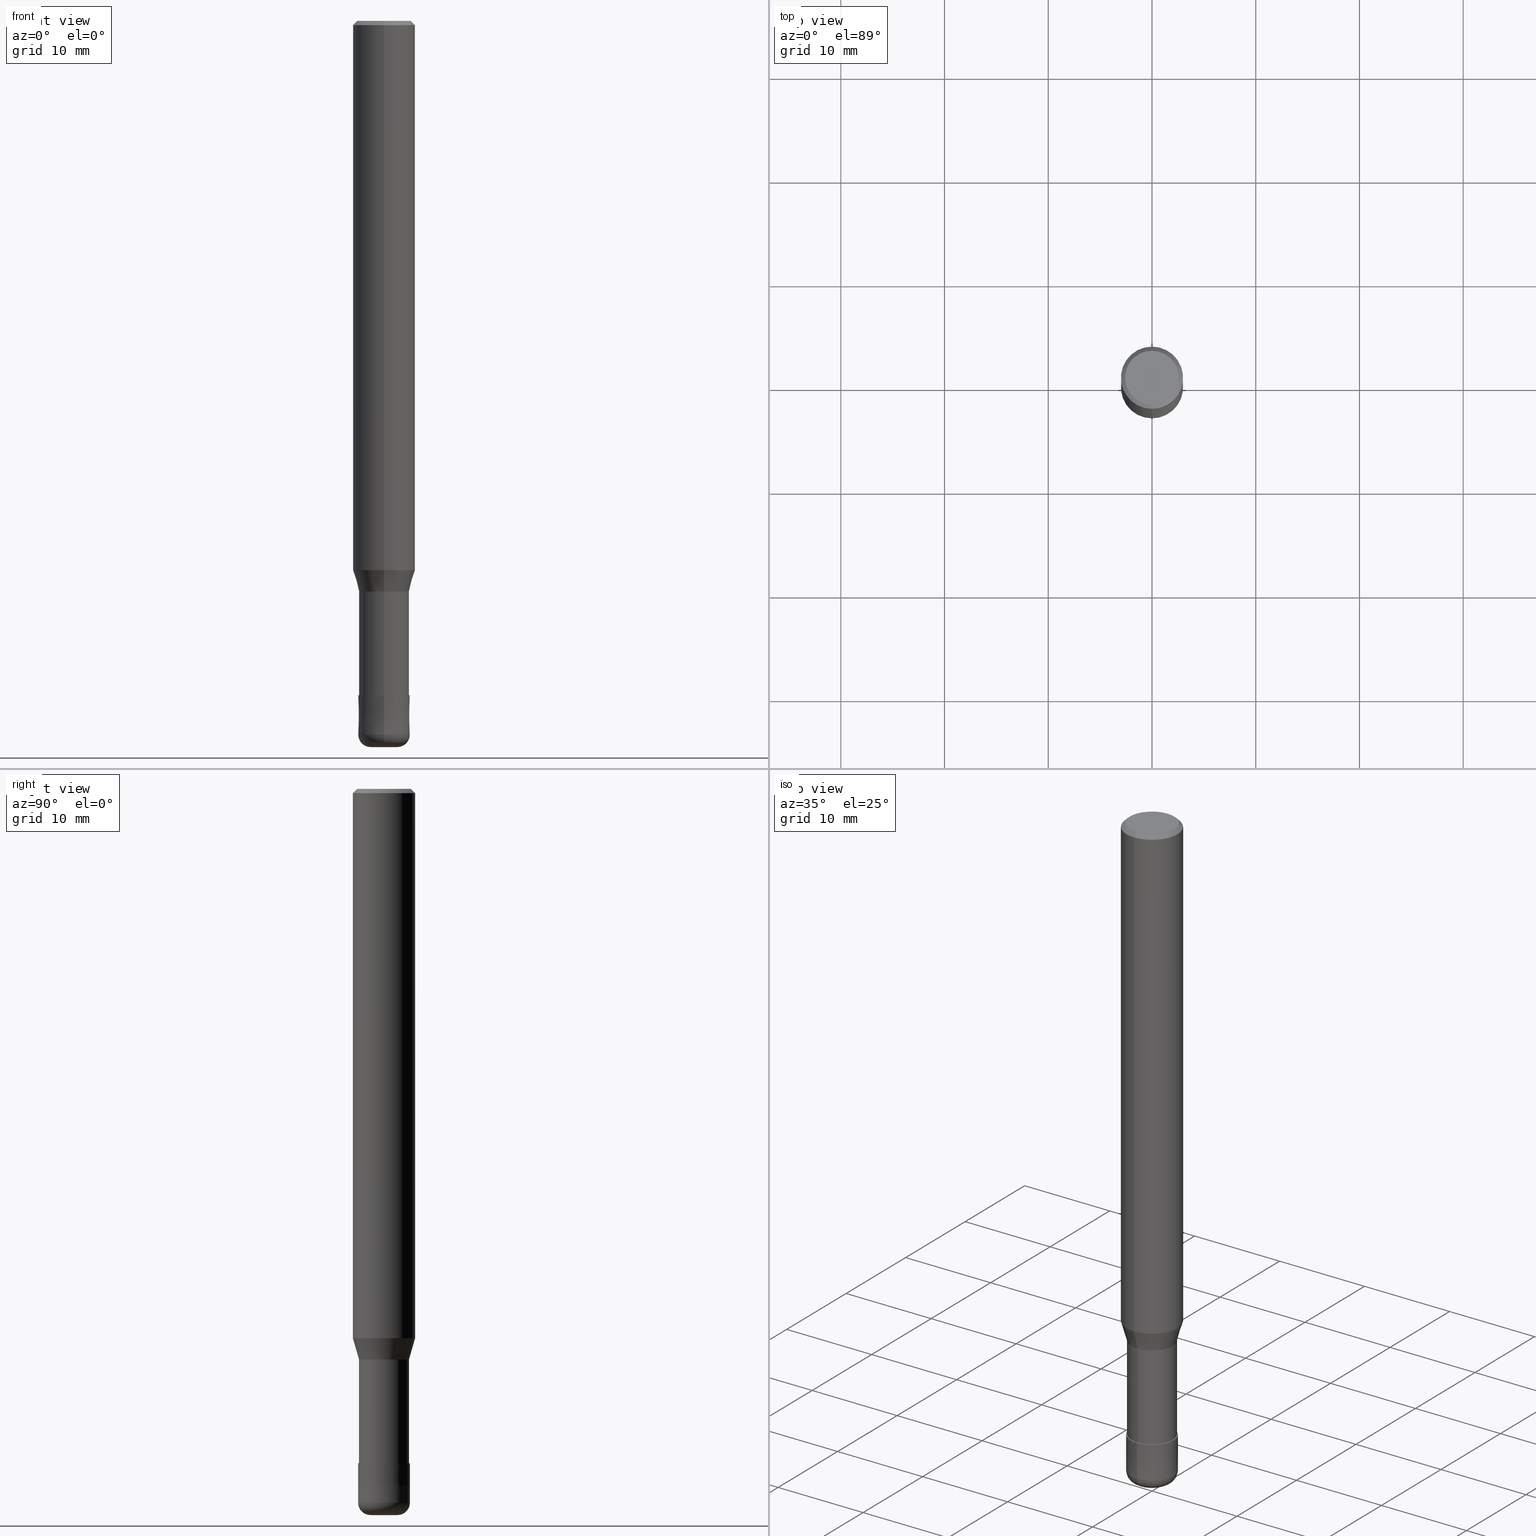
[diagram: canonical four-view strip — front | top / right | iso, engineering-drawing reading convention]
A machine part, canonical four-view strip (front | top / right | iso — engineering-drawing reading convention). The complete STEP part file that produces these views, byte-faithful:
ISO-10303-21;
HEADER;
FILE_DESCRIPTION(('no description'),'unknown implementation level');
FILE_NAME('CRRS4050-12-15-Huellk.stp','  ',('CIMSOURCE GmbH'),('CADClick - KiM GmbH - www.kimweb.de'),'unknown preprocess','ACIS','unknown authorization');
FILE_SCHEMA(('automotive_design'));
ENDSEC;
DATA;
#1=MECHANICAL_DESIGN_GEOMETRIC_PRESENTATION_REPRESENTATION(' ',(#14,#15,#16,#17,#18,#19,#20,#21,#22,#23,#24,#25,#26,#27,#28,#29,#30,#31,#32,#33,#34,#35,#36,#37,#38,#39,#40,#41,#42,#43,#44,#45,#46,#47,#48,#49,#50,#51,#52,#53,#54,#55,#56,#57,#58,#59,#60,#61,#62,#63,#64,#65,#66,#67,#68,#69,#70,#71,#72,#73,#74,#75,#76,#77,#78,#79,#80),#10);
#2=PRODUCT_DEFINITION_CONTEXT('',#81,'design');
#3=APPLICATION_PROTOCOL_DEFINITION('INTERNATIONAL STANDARD','automotive_design',1994,#81);
#4=PRODUCT_CATEGORY_RELATIONSHIP('NONE','NONE',#82,#83);
#5=SHAPE_DEFINITION_REPRESENTATION(#84,#85);
#6=PRODUCT_DEFINITION_CONTEXT('',#86,'design');
#7=APPLICATION_PROTOCOL_DEFINITION('INTERNATIONAL STANDARD','automotive_design',1994,#86);
#8=PRODUCT_CATEGORY_RELATIONSHIP('NONE','NONE',#87,#88);
#9=SHAPE_DEFINITION_REPRESENTATION(#89,#90);
#10= (GEOMETRIC_REPRESENTATION_CONTEXT(3)GLOBAL_UNCERTAINTY_ASSIGNED_CONTEXT((#93))GLOBAL_UNIT_ASSIGNED_CONTEXT((#95,#96,#97))REPRESENTATION_CONTEXT('NONE','WORKSPACE'));
#14=STYLED_ITEM('',(#99),#100);
#15=STYLED_ITEM('',(#101),#102);
#16=STYLED_ITEM('',(#103),#104);
#17=STYLED_ITEM('',(#105),#106);
#18=STYLED_ITEM('',(#107),#108);
#19=STYLED_ITEM('',(#109),#110);
#20=STYLED_ITEM('',(#111),#112);
#21=STYLED_ITEM('',(#113),#114);
#22=STYLED_ITEM('',(#115),#116);
#23=STYLED_ITEM('',(#117),#118);
#24=STYLED_ITEM('',(#119),#120);
#25=STYLED_ITEM('',(#121),#122);
#26=STYLED_ITEM('',(#123),#124);
#27=STYLED_ITEM('',(#125),#126);
#28=STYLED_ITEM('',(#127),#128);
#29=STYLED_ITEM('',(#129),#130);
#30=STYLED_ITEM('',(#131),#132);
#31=STYLED_ITEM('',(#133),#134);
#32=STYLED_ITEM('',(#135),#136);
#33=STYLED_ITEM('',(#137),#138);
#34=STYLED_ITEM('',(#139),#140);
#35=STYLED_ITEM('',(#141),#142);
#36=STYLED_ITEM('',(#143),#144);
#37=STYLED_ITEM('',(#145),#146);
#38=STYLED_ITEM('',(#147),#148);
#39=STYLED_ITEM('',(#149),#150);
#40=STYLED_ITEM('',(#151),#152);
#41=STYLED_ITEM('',(#153),#154);
#42=STYLED_ITEM('',(#155),#156);
#43=STYLED_ITEM('',(#157),#158);
#44=STYLED_ITEM('',(#159),#160);
#45=STYLED_ITEM('',(#161),#162);
#46=STYLED_ITEM('',(#163),#164);
#47=STYLED_ITEM('',(#165),#166);
#48=STYLED_ITEM('',(#167),#168);
#49=STYLED_ITEM('',(#169),#170);
#50=STYLED_ITEM('',(#171),#172);
#51=STYLED_ITEM('',(#173),#174);
#52=STYLED_ITEM('',(#175),#176);
#53=STYLED_ITEM('',(#177),#178);
#54=STYLED_ITEM('',(#179),#180);
#55=STYLED_ITEM('',(#181),#182);
#56=STYLED_ITEM('',(#183),#184);
#57=STYLED_ITEM('',(#185),#186);
#58=STYLED_ITEM('',(#187),#188);
#59=STYLED_ITEM('',(#189),#190);
#60=STYLED_ITEM('',(#191),#192);
#61=STYLED_ITEM('',(#193),#194);
#62=STYLED_ITEM('',(#195),#196);
#63=STYLED_ITEM('',(#197),#198);
#64=STYLED_ITEM('',(#199),#200);
#65=STYLED_ITEM('',(#201),#202);
#66=STYLED_ITEM('',(#203),#204);
#67=STYLED_ITEM('',(#205),#206);
#68=STYLED_ITEM('',(#207),#208);
#69=STYLED_ITEM('',(#209),#210);
#70=STYLED_ITEM('',(#211),#212);
#71=STYLED_ITEM('',(#213),#214);
#72=STYLED_ITEM('',(#215),#216);
#73=STYLED_ITEM('',(#217),#218);
#74=STYLED_ITEM('',(#219),#220);
#75=STYLED_ITEM('',(#221),#222);
#76=STYLED_ITEM('',(#223),#224);
#77=STYLED_ITEM('',(#225),#226);
#78=STYLED_ITEM('',(#227),#228);
#79=STYLED_ITEM('',(#229),#230);
#80=STYLED_ITEM('',(#231),#232);
#81=APPLICATION_CONTEXT(' ');
#82=PRODUCT_CATEGORY('part','NONE');
#83=PRODUCT_RELATED_PRODUCT_CATEGORY('detail',' ',(#233));
#84=PRODUCT_DEFINITION_SHAPE('NONE','NONE',#234);
#85=ADVANCED_BREP_SHAPE_REPRESENTATION('1',(#228,#235),#10);
#86=APPLICATION_CONTEXT(' ');
#87=PRODUCT_CATEGORY('part','NONE');
#88=PRODUCT_RELATED_PRODUCT_CATEGORY('detail',' ',(#236));
#89=PRODUCT_DEFINITION_SHAPE('NONE','NONE',#237);
#90=ADVANCED_BREP_SHAPE_REPRESENTATION('2',(#176,#238),#10);
#93=UNCERTAINTY_MEASURE_WITH_UNIT(LENGTH_MEASURE(1.0E-006),#95,'','');
#95= (CONVERSION_BASED_UNIT('MILLIMETRE',#241)LENGTH_UNIT()NAMED_UNIT(#244));
#96= (NAMED_UNIT(#246)PLANE_ANGLE_UNIT()SI_UNIT($,.RADIAN.));
#97= (NAMED_UNIT(#246)SOLID_ANGLE_UNIT()SI_UNIT($,.STERADIAN.));
#99=PRESENTATION_STYLE_ASSIGNMENT((#252));
#100=ADVANCED_FACE('',(#253),#254,.T.);
#101=PRESENTATION_STYLE_ASSIGNMENT((#255));
#102=VERTEX_POINT('',#256);
#103=PRESENTATION_STYLE_ASSIGNMENT((#257));
#104=EDGE_CURVE('',#120,#126,#258,.T.);
#105=PRESENTATION_STYLE_ASSIGNMENT((#259));
#106=ADVANCED_FACE('',(#260),#261,.T.);
#107=PRESENTATION_STYLE_ASSIGNMENT((#262));
#108=EDGE_CURVE('',#140,#214,#263,.T.);
#109=PRESENTATION_STYLE_ASSIGNMENT((#264));
#110=EDGE_CURVE('',#140,#226,#265,.T.);
#111=PRESENTATION_STYLE_ASSIGNMENT((#266));
#112=ADVANCED_FACE('',(#267),#268,.T.);
#113=PRESENTATION_STYLE_ASSIGNMENT((#269));
#114=EDGE_CURVE('',#196,#226,#270,.T.);
#115=PRESENTATION_STYLE_ASSIGNMENT((#271));
#116=ADVANCED_FACE('',(#272),#273,.T.);
#117=PRESENTATION_STYLE_ASSIGNMENT((#274));
#118=EDGE_CURVE('',#126,#140,#275,.T.);
#119=PRESENTATION_STYLE_ASSIGNMENT((#276));
#120=VERTEX_POINT('',#277);
#121=PRESENTATION_STYLE_ASSIGNMENT((#278));
#122=VERTEX_POINT('',#279);
#123=PRESENTATION_STYLE_ASSIGNMENT((#280));
#124=ADVANCED_FACE('',(#281,#282),#283,.T.);
#125=PRESENTATION_STYLE_ASSIGNMENT((#284));
#126=VERTEX_POINT('',#285);
#127=PRESENTATION_STYLE_ASSIGNMENT((#286));
#128=ADVANCED_FACE('',(#287),#288,.T.);
#129=PRESENTATION_STYLE_ASSIGNMENT((#289));
#130=EDGE_CURVE('',#136,#204,#290,.T.);
#131=PRESENTATION_STYLE_ASSIGNMENT((#291));
#132=EDGE_CURVE('',#122,#150,#292,.T.);
#133=PRESENTATION_STYLE_ASSIGNMENT((#293));
#134=ADVANCED_FACE('',(#294),#295,.T.);
#135=PRESENTATION_STYLE_ASSIGNMENT((#296));
#136=VERTEX_POINT('',#297);
#137=PRESENTATION_STYLE_ASSIGNMENT((#298));
#138=ADVANCED_FACE('',(#299),#300,.T.);
#139=PRESENTATION_STYLE_ASSIGNMENT((#301));
#140=VERTEX_POINT('',#302);
#141=PRESENTATION_STYLE_ASSIGNMENT((#303));
#142=VERTEX_POINT('',#304);
#143=PRESENTATION_STYLE_ASSIGNMENT((#305));
#144=EDGE_CURVE('',#102,#142,#306,.T.);
#145=PRESENTATION_STYLE_ASSIGNMENT((#307));
#146=VERTEX_POINT('',#308);
#147=PRESENTATION_STYLE_ASSIGNMENT((#309));
#148=VERTEX_POINT('',#310);
#149=PRESENTATION_STYLE_ASSIGNMENT((#311));
#150=VERTEX_POINT('',#312);
#151=PRESENTATION_STYLE_ASSIGNMENT((#313));
#152=VERTEX_POINT('',#314);
#153=PRESENTATION_STYLE_ASSIGNMENT((#315));
#154=ADVANCED_FACE('',(#316),#317,.T.);
#155=PRESENTATION_STYLE_ASSIGNMENT((#318));
#156=EDGE_CURVE('',#222,#122,#319,.T.);
#157=PRESENTATION_STYLE_ASSIGNMENT((#320));
#158=EDGE_CURVE('',#146,#148,#321,.T.);
#159=PRESENTATION_STYLE_ASSIGNMENT((#322));
#160=EDGE_CURVE('',#200,#222,#323,.T.);
#161=PRESENTATION_STYLE_ASSIGNMENT((#324));
#162=VERTEX_POINT('',#325);
#163=PRESENTATION_STYLE_ASSIGNMENT((#326));
#164=EDGE_CURVE('',#142,#102,#327,.T.);
#165=PRESENTATION_STYLE_ASSIGNMENT((#328));
#166=EDGE_CURVE('',#122,#222,#329,.T.);
#167=PRESENTATION_STYLE_ASSIGNMENT((#330));
#168=EDGE_CURVE('',#150,#200,#331,.T.);
#169=PRESENTATION_STYLE_ASSIGNMENT((#332));
#170=ADVANCED_FACE('',(#333),#334,.T.);
#171=PRESENTATION_STYLE_ASSIGNMENT((#335));
#172=ADVANCED_FACE('',(#336),#337,.T.);
#173=PRESENTATION_STYLE_ASSIGNMENT((#338));
#174=EDGE_CURVE('',#200,#150,#339,.T.);
#175=PRESENTATION_STYLE_ASSIGNMENT((#340));
#176=MANIFOLD_SOLID_BREP('2',#341);
#177=PRESENTATION_STYLE_ASSIGNMENT((#342));
#178=EDGE_CURVE('',#148,#162,#343,.T.);
#179=PRESENTATION_STYLE_ASSIGNMENT((#344));
#180=EDGE_CURVE('',#150,#142,#345,.T.);
#181=PRESENTATION_STYLE_ASSIGNMENT((#346));
#182=EDGE_CURVE('',#146,#152,#347,.T.);
#183=PRESENTATION_STYLE_ASSIGNMENT((#348));
#184=EDGE_CURVE('',#204,#152,#349,.T.);
#185=PRESENTATION_STYLE_ASSIGNMENT((#350));
#186=EDGE_CURVE('',#204,#136,#351,.T.);
#187=PRESENTATION_STYLE_ASSIGNMENT((#352));
#188=EDGE_CURVE('',#152,#146,#353,.T.);
#189=PRESENTATION_STYLE_ASSIGNMENT((#354));
#190=ADVANCED_FACE('',(#355),#356,.T.);
#191=PRESENTATION_STYLE_ASSIGNMENT((#357));
#192=ADVANCED_FACE('',(#358),#359,.T.);
#193=PRESENTATION_STYLE_ASSIGNMENT((#360));
#194=EDGE_CURVE('',#162,#152,#361,.T.);
#195=PRESENTATION_STYLE_ASSIGNMENT((#362));
#196=VERTEX_POINT('',#363);
#197=PRESENTATION_STYLE_ASSIGNMENT((#364));
#198=EDGE_CURVE('',#214,#196,#365,.T.);
#199=PRESENTATION_STYLE_ASSIGNMENT((#366));
#200=VERTEX_POINT('',#367);
#201=PRESENTATION_STYLE_ASSIGNMENT((#368));
#202=EDGE_CURVE('',#226,#140,#369,.T.);
#203=PRESENTATION_STYLE_ASSIGNMENT((#370));
#204=VERTEX_POINT('',#371);
#205=PRESENTATION_STYLE_ASSIGNMENT((#372));
#206=EDGE_CURVE('',#162,#148,#373,.T.);
#207=PRESENTATION_STYLE_ASSIGNMENT((#374));
#208=EDGE_CURVE('',#126,#120,#375,.T.);
#209=PRESENTATION_STYLE_ASSIGNMENT((#376));
#210=EDGE_CURVE('',#226,#120,#377,.T.);
#211=PRESENTATION_STYLE_ASSIGNMENT((#378));
#212=EDGE_CURVE('',#196,#214,#379,.T.);
#213=PRESENTATION_STYLE_ASSIGNMENT((#380));
#214=VERTEX_POINT('',#381);
#215=PRESENTATION_STYLE_ASSIGNMENT((#382));
#216=ADVANCED_FACE('',(#383),#384,.T.);
#217=PRESENTATION_STYLE_ASSIGNMENT((#385));
#218=EDGE_CURVE('',#146,#136,#386,.T.);
#219=PRESENTATION_STYLE_ASSIGNMENT((#387));
#220=ADVANCED_FACE('',(#388),#389,.T.);
#221=PRESENTATION_STYLE_ASSIGNMENT((#390));
#222=VERTEX_POINT('',#391);
#223=PRESENTATION_STYLE_ASSIGNMENT((#392));
#224=EDGE_CURVE('',#102,#200,#393,.T.);
#225=PRESENTATION_STYLE_ASSIGNMENT((#394));
#226=VERTEX_POINT('',#395);
#227=PRESENTATION_STYLE_ASSIGNMENT((#396));
#228=MANIFOLD_SOLID_BREP('1',#397);
#229=PRESENTATION_STYLE_ASSIGNMENT((#398));
#230=ADVANCED_FACE('',(#399),#400,.T.);
#231=PRESENTATION_STYLE_ASSIGNMENT((#401));
#232=ADVANCED_FACE('',(#402),#403,.T.);
#233=PRODUCT('1','1','PART-1-DESC',(#404));
#234=PRODUCT_DEFINITION('NONE','NONE',#405,#2);
#235=AXIS2_PLACEMENT_3D('',#406,#407,#408);
#236=PRODUCT('2','2','PART-2-DESC',(#409));
#237=PRODUCT_DEFINITION('NONE','NONE',#410,#6);
#238=AXIS2_PLACEMENT_3D('',#411,#412,#413);
#241=LENGTH_MEASURE_WITH_UNIT(LENGTH_MEASURE(1.0),#414);
#244=DIMENSIONAL_EXPONENTS(1.0,0.0,0.0,0.0,0.0,0.0,0.0);
#246=DIMENSIONAL_EXPONENTS(0.0,0.0,0.0,0.0,0.0,0.0,0.0);
#252=SURFACE_STYLE_USAGE(.BOTH.,#415);
#253=FACE_OUTER_BOUND('',#416,.T.);
#254=PLANE('',#417);
#255=POINT_STYLE(' ',#418,POSITIVE_LENGTH_MEASURE(1.0E-006),#419);
#256=CARTESIAN_POINT('',(0.0,2.6,0.0));
#257=CURVE_STYLE('',#420,POSITIVE_LENGTH_MEASURE(1.0E-006),#421);
#258=CIRCLE('',#422,2.99995);
#259=SURFACE_STYLE_USAGE(.BOTH.,#423);
#260=FACE_OUTER_BOUND('',#424,.T.);
#261=PLANE('',#425);
#262=CURVE_STYLE('',#426,POSITIVE_LENGTH_MEASURE(1.0E-006),#427);
#263=LINE('',#428,#429);
#264=CURVE_STYLE('',#430,POSITIVE_LENGTH_MEASURE(1.0E-006),#431);
#265=CIRCLE('',#432,2.40995);
#266=SURFACE_STYLE_USAGE(.BOTH.,#433);
#267=FACE_OUTER_BOUND('',#434,.T.);
#268=CONICAL_SURFACE('',#435,2.8,0.78539816339745);
#269=CURVE_STYLE('',#436,POSITIVE_LENGTH_MEASURE(1.0E-006),#437);
#270=LINE('',#438,#439);
#271=SURFACE_STYLE_USAGE(.BOTH.,#440);
#272=FACE_OUTER_BOUND('',#441,.T.);
#273=CONICAL_SURFACE('',#442,2.70495,0.279197900775595);
#274=CURVE_STYLE('',#443,POSITIVE_LENGTH_MEASURE(1.0E-006),#444);
#275=LINE('',#445,#446);
#276=POINT_STYLE(' ',#447,POSITIVE_LENGTH_MEASURE(1.0E-006),#448);
#277=CARTESIAN_POINT('',(3.67375783114944E-016,-2.99995,-52.942));
#278=POINT_STYLE(' ',#449,POSITIVE_LENGTH_MEASURE(1.0E-006),#450);
#279=CARTESIAN_POINT('',(3.67381906146713E-016,-3.0,-52.942));
#280=SURFACE_STYLE_USAGE(.BOTH.,#451);
#281=FACE_OUTER_BOUND('',#452,.T.);
#282=FACE_BOUND('',#453,.T.);
#283=PLANE('',#454);
#284=POINT_STYLE(' ',#455,POSITIVE_LENGTH_MEASURE(1.0E-006),#456);
#285=CARTESIAN_POINT('',(0.0,2.99995,-52.942));
#286=SURFACE_STYLE_USAGE(.BOTH.,#457);
#287=FACE_OUTER_BOUND('',#458,.T.);
#288=TOROIDAL_SURFACE('',#459,1.3,1.2);
#289=CURVE_STYLE('',#460,POSITIVE_LENGTH_MEASURE(1.0E-006),#461);
#290=CIRCLE('',#462,1.3);
#291=CURVE_STYLE('',#463,POSITIVE_LENGTH_MEASURE(1.0E-006),#464);
#292=LINE('',#465,#466);
#293=SURFACE_STYLE_USAGE(.BOTH.,#467);
#294=FACE_OUTER_BOUND('',#468,.T.);
#295=PLANE('',#469);
#296=POINT_STYLE(' ',#470,POSITIVE_LENGTH_MEASURE(1.0E-006),#471);
#297=CARTESIAN_POINT('',(1.59198825996909E-016,-1.3,-70.0));
#298=SURFACE_STYLE_USAGE(.BOTH.,#472);
#299=FACE_OUTER_BOUND('',#473,.T.);
#300=CYLINDRICAL_SURFACE('',#474,2.40995);
#301=POINT_STYLE(' ',#475,POSITIVE_LENGTH_MEASURE(1.0E-006),#476);
#302=CARTESIAN_POINT('',(0.0,2.40995,-55.0));
#303=POINT_STYLE(' ',#477,POSITIVE_LENGTH_MEASURE(1.0E-006),#478);
#304=CARTESIAN_POINT('',(3.18397651993818E-016,-2.6,0.0));
#305=CURVE_STYLE('',#479,POSITIVE_LENGTH_MEASURE(1.0E-006),#480);
#306=CIRCLE('',#481,2.6);
#307=POINT_STYLE(' ',#482,POSITIVE_LENGTH_MEASURE(1.0E-006),#483);
#308=CARTESIAN_POINT('',(3.06151588455594E-016,-2.5,-68.8));
#309=POINT_STYLE(' ',#484,POSITIVE_LENGTH_MEASURE(1.0E-006),#485);
#310=CARTESIAN_POINT('',(3.06139342392056E-016,-2.4999,-65.0));
#311=POINT_STYLE(' ',#486,POSITIVE_LENGTH_MEASURE(1.0E-006),#487);
#312=CARTESIAN_POINT('',(3.67381906146713E-016,-3.0,-0.399999999999999));
#313=POINT_STYLE(' ',#488,POSITIVE_LENGTH_MEASURE(1.0E-006),#489);
#314=CARTESIAN_POINT('',(0.0,2.5,-68.8));
#315=SURFACE_STYLE_USAGE(.BOTH.,#490);
#316=FACE_OUTER_BOUND('',#491,.T.);
#317=CYLINDRICAL_SURFACE('',#492,3.0);
#318=CURVE_STYLE('',#493,POSITIVE_LENGTH_MEASURE(1.0E-006),#494);
#319=CIRCLE('',#495,3.0);
#320=CURVE_STYLE('',#496,POSITIVE_LENGTH_MEASURE(1.0E-006),#497);
#321=LINE('',#498,#499);
#322=CURVE_STYLE('',#500,POSITIVE_LENGTH_MEASURE(1.0E-006),#501);
#323=LINE('',#502,#503);
#324=POINT_STYLE(' ',#504,POSITIVE_LENGTH_MEASURE(1.0E-006),#505);
#325=CARTESIAN_POINT('',(0.0,2.4999,-65.0));
#326=CURVE_STYLE('',#506,POSITIVE_LENGTH_MEASURE(1.0E-006),#507);
#327=CIRCLE('',#508,2.6);
#328=CURVE_STYLE('',#509,POSITIVE_LENGTH_MEASURE(1.0E-006),#510);
#329=CIRCLE('',#511,3.0);
#330=CURVE_STYLE('',#512,POSITIVE_LENGTH_MEASURE(1.0E-006),#513);
#331=CIRCLE('',#514,3.0);
#332=SURFACE_STYLE_USAGE(.BOTH.,#515);
#333=FACE_OUTER_BOUND('',#516,.T.);
#334=PLANE('',#517);
#335=SURFACE_STYLE_USAGE(.BOTH.,#518);
#336=FACE_OUTER_BOUND('',#519,.T.);
#337=CONICAL_SURFACE('',#520,2.70495,0.279197900775595);
#338=CURVE_STYLE('',#521,POSITIVE_LENGTH_MEASURE(1.0E-006),#522);
#339=CIRCLE('',#523,3.0);
#340=SURFACE_STYLE_USAGE(.BOTH.,#524);
#341=CLOSED_SHELL('',(#128,#220,#134,#232,#230,#100));
#342=CURVE_STYLE('',#525,POSITIVE_LENGTH_MEASURE(1.0E-006),#526);
#343=CIRCLE('',#527,2.4999);
#344=CURVE_STYLE('',#528,POSITIVE_LENGTH_MEASURE(1.0E-006),#529);
#345=LINE('',#530,#531);
#346=CURVE_STYLE('',#532,POSITIVE_LENGTH_MEASURE(1.0E-006),#533);
#347=CIRCLE('',#534,2.5);
#348=CURVE_STYLE('',#535,POSITIVE_LENGTH_MEASURE(1.0E-006),#536);
#349=CIRCLE('',#537,1.2);
#350=CURVE_STYLE('',#538,POSITIVE_LENGTH_MEASURE(1.0E-006),#539);
#351=CIRCLE('',#540,1.3);
#352=CURVE_STYLE('',#541,POSITIVE_LENGTH_MEASURE(1.0E-006),#542);
#353=CIRCLE('',#543,2.5);
#354=SURFACE_STYLE_USAGE(.BOTH.,#544);
#355=FACE_OUTER_BOUND('',#545,.T.);
#356=CYLINDRICAL_SURFACE('',#546,3.0);
#357=SURFACE_STYLE_USAGE(.BOTH.,#547);
#358=FACE_OUTER_BOUND('',#548,.T.);
#359=CONICAL_SURFACE('',#549,2.8,0.78539816339745);
#360=CURVE_STYLE('',#550,POSITIVE_LENGTH_MEASURE(1.0E-006),#551);
#361=LINE('',#552,#553);
#362=POINT_STYLE(' ',#554,POSITIVE_LENGTH_MEASURE(1.0E-006),#555);
#363=CARTESIAN_POINT('',(2.95124008239424E-016,-2.40995,-65.0));
#364=CURVE_STYLE('',#556,POSITIVE_LENGTH_MEASURE(1.0E-006),#557);
#365=CIRCLE('',#558,2.40995);
#366=POINT_STYLE(' ',#559,POSITIVE_LENGTH_MEASURE(1.0E-006),#560);
#367=CARTESIAN_POINT('',(0.0,3.0,-0.399999999999999));
#368=CURVE_STYLE('',#561,POSITIVE_LENGTH_MEASURE(1.0E-006),#562);
#369=CIRCLE('',#563,2.40995);
#370=POINT_STYLE(' ',#564,POSITIVE_LENGTH_MEASURE(1.0E-006),#565);
#371=CARTESIAN_POINT('',(0.0,1.3,-70.0));
#372=CURVE_STYLE('',#566,POSITIVE_LENGTH_MEASURE(1.0E-006),#567);
#373=CIRCLE('',#568,2.4999);
#374=CURVE_STYLE('',#569,POSITIVE_LENGTH_MEASURE(1.0E-006),#570);
#375=CIRCLE('',#571,2.99995);
#376=CURVE_STYLE('',#572,POSITIVE_LENGTH_MEASURE(1.0E-006),#573);
#377=LINE('',#574,#575);
#378=CURVE_STYLE('',#576,POSITIVE_LENGTH_MEASURE(1.0E-006),#577);
#379=CIRCLE('',#578,2.40995);
#380=POINT_STYLE(' ',#579,POSITIVE_LENGTH_MEASURE(1.0E-006),#580);
#381=CARTESIAN_POINT('',(0.0,2.40995,-65.0));
#382=SURFACE_STYLE_USAGE(.BOTH.,#581);
#383=FACE_OUTER_BOUND('',#582,.T.);
#384=CYLINDRICAL_SURFACE('',#583,2.40995);
#385=CURVE_STYLE('',#584,POSITIVE_LENGTH_MEASURE(1.0E-006),#585);
#386=CIRCLE('',#586,1.2);
#387=SURFACE_STYLE_USAGE(.BOTH.,#587);
#388=FACE_OUTER_BOUND('',#588,.T.);
#389=CONICAL_SURFACE('',#589,2.49995,2.6315789467665E-005);
#390=POINT_STYLE(' ',#590,POSITIVE_LENGTH_MEASURE(1.0E-006),#591);
#391=CARTESIAN_POINT('',(0.0,3.0,-52.942));
#392=CURVE_STYLE('',#592,POSITIVE_LENGTH_MEASURE(1.0E-006),#593);
#393=LINE('',#594,#595);
#394=POINT_STYLE(' ',#596,POSITIVE_LENGTH_MEASURE(1.0E-006),#597);
#395=CARTESIAN_POINT('',(2.95124008239424E-016,-2.40995,-55.0));
#396=SURFACE_STYLE_USAGE(.BOTH.,#598);
#397=CLOSED_SHELL('',(#216,#172,#190,#112,#124,#170,#192,#154,#116,#138,#106));
#398=SURFACE_STYLE_USAGE(.BOTH.,#599);
#399=FACE_OUTER_BOUND('',#600,.T.);
#400=TOROIDAL_SURFACE('',#601,1.3,1.2);
#401=SURFACE_STYLE_USAGE(.BOTH.,#602);
#402=FACE_OUTER_BOUND('',#603,.T.);
#403=CONICAL_SURFACE('',#604,2.49995,2.6315789467665E-005);
#404=PRODUCT_CONTEXT('',#81,'mechanical');
#405=PRODUCT_DEFINITION_FORMATION_WITH_SPECIFIED_SOURCE(' ','NONE',#233,.NOT_KNOWN.);
#406=CARTESIAN_POINT('',(0.0,0.0,0.0));
#407=DIRECTION('',(0.0,0.0,1.0));
#408=DIRECTION('',(1.0,0.0,0.0));
#409=PRODUCT_CONTEXT('',#86,'mechanical');
#410=PRODUCT_DEFINITION_FORMATION_WITH_SPECIFIED_SOURCE(' ','NONE',#236,.NOT_KNOWN.);
#411=CARTESIAN_POINT('',(0.0,0.0,0.0));
#412=DIRECTION('',(0.0,0.0,1.0));
#413=DIRECTION('',(1.0,0.0,0.0));
#414= (NAMED_UNIT(#244)LENGTH_UNIT()SI_UNIT(.MILLI.,.METRE.));
#415=SURFACE_SIDE_STYLE('',(#606));
#416=EDGE_LOOP('',(#607,#608));
#417=AXIS2_PLACEMENT_3D('',#609,#610,#611);
#418=PRE_DEFINED_MARKER('');
#419=COLOUR_RGB('',0.498039215803146,0.498039215803146,0.498039215803146);
#420=DRAUGHTING_PRE_DEFINED_CURVE_FONT('continuous');
#421=COLOUR_RGB('',0.498039215803146,0.498039215803146,0.498039215803146);
#422=AXIS2_PLACEMENT_3D('',#612,#613,#614);
#423=SURFACE_SIDE_STYLE('',(#615));
#424=EDGE_LOOP('',(#616,#617));
#425=AXIS2_PLACEMENT_3D('',#618,#619,#620);
#426=DRAUGHTING_PRE_DEFINED_CURVE_FONT('continuous');
#427=COLOUR_RGB('',0.498039215803146,0.498039215803146,0.498039215803146);
#428=CARTESIAN_POINT('',(-2.95124008239424E-016,2.40995,-60.0));
#429=VECTOR('',#621,1.0);
#430=DRAUGHTING_PRE_DEFINED_CURVE_FONT('continuous');
#431=COLOUR_RGB('',0.498039215803146,0.498039215803146,0.498039215803146);
#432=AXIS2_PLACEMENT_3D('',#622,#623,#624);
#433=SURFACE_SIDE_STYLE('',(#625));
#434=EDGE_LOOP('',(#626,#627,#628,#629));
#435=AXIS2_PLACEMENT_3D('',#630,#631,#632);
#436=DRAUGHTING_PRE_DEFINED_CURVE_FONT('continuous');
#437=COLOUR_RGB('',0.498039215803146,0.498039215803146,0.498039215803146);
#438=CARTESIAN_POINT('',(2.95124008239424E-016,-2.40995,-60.0));
#439=VECTOR('',#633,1.0);
#440=SURFACE_SIDE_STYLE('',(#634));
#441=EDGE_LOOP('',(#635,#636,#637,#638));
#442=AXIS2_PLACEMENT_3D('',#639,#640,#641);
#443=DRAUGHTING_PRE_DEFINED_CURVE_FONT('continuous');
#444=COLOUR_RGB('',0.498039215803146,0.498039215803146,0.498039215803146);
#445=CARTESIAN_POINT('',(-3.31249895677184E-016,2.70495,-53.971));
#446=VECTOR('',#642,1.0);
#447=PRE_DEFINED_MARKER('');
#448=COLOUR_RGB('',0.498039215803146,0.498039215803146,0.498039215803146);
#449=PRE_DEFINED_MARKER('');
#450=COLOUR_RGB('',0.498039215803146,0.498039215803146,0.498039215803146);
#451=SURFACE_SIDE_STYLE('',(#643));
#452=EDGE_LOOP('',(#644,#645));
#453=EDGE_LOOP('',(#646,#647));
#454=AXIS2_PLACEMENT_3D('',#648,#649,#650);
#455=PRE_DEFINED_MARKER('');
#456=COLOUR_RGB('',0.498039215803146,0.498039215803146,0.498039215803146);
#457=SURFACE_SIDE_STYLE('',(#651));
#458=EDGE_LOOP('',(#652,#653,#654,#655));
#459=AXIS2_PLACEMENT_3D('',#656,#657,#658);
#460=DRAUGHTING_PRE_DEFINED_CURVE_FONT('continuous');
#461=COLOUR_RGB('',0.800000011920929,0.800000011920929,0.800000011920929);
#462=AXIS2_PLACEMENT_3D('',#659,#660,#661);
#463=DRAUGHTING_PRE_DEFINED_CURVE_FONT('continuous');
#464=COLOUR_RGB('',0.498039215803146,0.498039215803146,0.498039215803146);
#465=CARTESIAN_POINT('',(3.67381906146713E-016,-3.0,-26.671));
#466=VECTOR('',#662,1.0);
#467=SURFACE_SIDE_STYLE('',(#663));
#468=EDGE_LOOP('',(#664,#665));
#469=AXIS2_PLACEMENT_3D('',#666,#667,#668);
#470=PRE_DEFINED_MARKER('');
#471=COLOUR_RGB('',0.800000011920929,0.800000011920929,0.800000011920929);
#472=SURFACE_SIDE_STYLE('',(#669));
#473=EDGE_LOOP('',(#670,#671,#672,#673));
#474=AXIS2_PLACEMENT_3D('',#674,#675,#676);
#475=PRE_DEFINED_MARKER('');
#476=COLOUR_RGB('',0.498039215803146,0.498039215803146,0.498039215803146);
#477=PRE_DEFINED_MARKER('');
#478=COLOUR_RGB('',0.498039215803146,0.498039215803146,0.498039215803146);
#479=DRAUGHTING_PRE_DEFINED_CURVE_FONT('continuous');
#480=COLOUR_RGB('',0.498039215803146,0.498039215803146,0.498039215803146);
#481=AXIS2_PLACEMENT_3D('',#677,#678,#679);
#482=PRE_DEFINED_MARKER('');
#483=COLOUR_RGB('',0.800000011920929,0.800000011920929,0.800000011920929);
#484=PRE_DEFINED_MARKER('');
#485=COLOUR_RGB('',0.800000011920929,0.800000011920929,0.800000011920929);
#486=PRE_DEFINED_MARKER('');
#487=COLOUR_RGB('',0.498039215803146,0.498039215803146,0.498039215803146);
#488=PRE_DEFINED_MARKER('');
#489=COLOUR_RGB('',0.800000011920929,0.800000011920929,0.800000011920929);
#490=SURFACE_SIDE_STYLE('',(#680));
#491=EDGE_LOOP('',(#681,#682,#683,#684));
#492=AXIS2_PLACEMENT_3D('',#685,#686,#687);
#493=DRAUGHTING_PRE_DEFINED_CURVE_FONT('continuous');
#494=COLOUR_RGB('',0.498039215803146,0.498039215803146,0.498039215803146);
#495=AXIS2_PLACEMENT_3D('',#688,#689,#690);
#496=DRAUGHTING_PRE_DEFINED_CURVE_FONT('continuous');
#497=COLOUR_RGB('',0.800000011920929,0.800000011920929,0.800000011920929);
#498=CARTESIAN_POINT('',(3.06145465423825E-016,-2.49995,-66.9));
#499=VECTOR('',#691,1.0);
#500=DRAUGHTING_PRE_DEFINED_CURVE_FONT('continuous');
#501=COLOUR_RGB('',0.498039215803146,0.498039215803146,0.498039215803146);
#502=CARTESIAN_POINT('',(-3.67381906146713E-016,3.0,-26.671));
#503=VECTOR('',#692,1.0);
#504=PRE_DEFINED_MARKER('');
#505=COLOUR_RGB('',0.800000011920929,0.800000011920929,0.800000011920929);
#506=DRAUGHTING_PRE_DEFINED_CURVE_FONT('continuous');
#507=COLOUR_RGB('',0.498039215803146,0.498039215803146,0.498039215803146);
#508=AXIS2_PLACEMENT_3D('',#693,#694,#695);
#509=DRAUGHTING_PRE_DEFINED_CURVE_FONT('continuous');
#510=COLOUR_RGB('',0.498039215803146,0.498039215803146,0.498039215803146);
#511=AXIS2_PLACEMENT_3D('',#696,#697,#698);
#512=DRAUGHTING_PRE_DEFINED_CURVE_FONT('continuous');
#513=COLOUR_RGB('',0.498039215803146,0.498039215803146,0.498039215803146);
#514=AXIS2_PLACEMENT_3D('',#699,#700,#701);
#515=SURFACE_SIDE_STYLE('',(#702));
#516=EDGE_LOOP('',(#703,#704));
#517=AXIS2_PLACEMENT_3D('',#705,#706,#707);
#518=SURFACE_SIDE_STYLE('',(#708));
#519=EDGE_LOOP('',(#709,#710,#711,#712));
#520=AXIS2_PLACEMENT_3D('',#713,#714,#715);
#521=DRAUGHTING_PRE_DEFINED_CURVE_FONT('continuous');
#522=COLOUR_RGB('',0.498039215803146,0.498039215803146,0.498039215803146);
#523=AXIS2_PLACEMENT_3D('',#716,#717,#718);
#524=SURFACE_SIDE_STYLE('',(#719));
#525=DRAUGHTING_PRE_DEFINED_CURVE_FONT('continuous');
#526=COLOUR_RGB('',0.800000011920929,0.800000011920929,0.800000011920929);
#527=AXIS2_PLACEMENT_3D('',#720,#721,#722);
#528=DRAUGHTING_PRE_DEFINED_CURVE_FONT('continuous');
#529=COLOUR_RGB('',0.498039215803146,0.498039215803146,0.498039215803146);
#530=CARTESIAN_POINT('',(3.42889779070266E-016,-2.8,-0.199999999999996));
#531=VECTOR('',#723,1.0);
#532=DRAUGHTING_PRE_DEFINED_CURVE_FONT('continuous');
#533=COLOUR_RGB('',0.800000011920929,0.800000011920929,0.800000011920929);
#534=AXIS2_PLACEMENT_3D('',#724,#725,#726);
#535=DRAUGHTING_PRE_DEFINED_CURVE_FONT('continuous');
#536=COLOUR_RGB('',0.800000011920929,0.800000011920929,0.800000011920929);
#537=AXIS2_PLACEMENT_3D('',#727,#728,#729);
#538=DRAUGHTING_PRE_DEFINED_CURVE_FONT('continuous');
#539=COLOUR_RGB('',0.800000011920929,0.800000011920929,0.800000011920929);
#540=AXIS2_PLACEMENT_3D('',#730,#731,#732);
#541=DRAUGHTING_PRE_DEFINED_CURVE_FONT('continuous');
#542=COLOUR_RGB('',0.800000011920929,0.800000011920929,0.800000011920929);
#543=AXIS2_PLACEMENT_3D('',#733,#734,#735);
#544=SURFACE_SIDE_STYLE('',(#736));
#545=EDGE_LOOP('',(#737,#738,#739,#740));
#546=AXIS2_PLACEMENT_3D('',#741,#742,#743);
#547=SURFACE_SIDE_STYLE('',(#744));
#548=EDGE_LOOP('',(#745,#746,#747,#748));
#549=AXIS2_PLACEMENT_3D('',#749,#750,#751);
#550=DRAUGHTING_PRE_DEFINED_CURVE_FONT('continuous');
#551=COLOUR_RGB('',0.800000011920929,0.800000011920929,0.800000011920929);
#552=CARTESIAN_POINT('',(-3.06145465423825E-016,2.49995,-66.9));
#553=VECTOR('',#752,1.0);
#554=PRE_DEFINED_MARKER('');
#555=COLOUR_RGB('',0.498039215803146,0.498039215803146,0.498039215803146);
#556=DRAUGHTING_PRE_DEFINED_CURVE_FONT('continuous');
#557=COLOUR_RGB('',0.498039215803146,0.498039215803146,0.498039215803146);
#558=AXIS2_PLACEMENT_3D('',#753,#754,#755);
#559=PRE_DEFINED_MARKER('');
#560=COLOUR_RGB('',0.498039215803146,0.498039215803146,0.498039215803146);
#561=DRAUGHTING_PRE_DEFINED_CURVE_FONT('continuous');
#562=COLOUR_RGB('',0.498039215803146,0.498039215803146,0.498039215803146);
#563=AXIS2_PLACEMENT_3D('',#756,#757,#758);
#564=PRE_DEFINED_MARKER('');
#565=COLOUR_RGB('',0.800000011920929,0.800000011920929,0.800000011920929);
#566=DRAUGHTING_PRE_DEFINED_CURVE_FONT('continuous');
#567=COLOUR_RGB('',0.800000011920929,0.800000011920929,0.800000011920929);
#568=AXIS2_PLACEMENT_3D('',#759,#760,#761);
#569=DRAUGHTING_PRE_DEFINED_CURVE_FONT('continuous');
#570=COLOUR_RGB('',0.498039215803146,0.498039215803146,0.498039215803146);
#571=AXIS2_PLACEMENT_3D('',#762,#763,#764);
#572=DRAUGHTING_PRE_DEFINED_CURVE_FONT('continuous');
#573=COLOUR_RGB('',0.498039215803146,0.498039215803146,0.498039215803146);
#574=CARTESIAN_POINT('',(3.31249895677184E-016,-2.70495,-53.971));
#575=VECTOR('',#765,1.0);
#576=DRAUGHTING_PRE_DEFINED_CURVE_FONT('continuous');
#577=COLOUR_RGB('',0.498039215803146,0.498039215803146,0.498039215803146);
#578=AXIS2_PLACEMENT_3D('',#766,#767,#768);
#579=PRE_DEFINED_MARKER('');
#580=COLOUR_RGB('',0.498039215803146,0.498039215803146,0.498039215803146);
#581=SURFACE_SIDE_STYLE('',(#769));
#582=EDGE_LOOP('',(#770,#771,#772,#773));
#583=AXIS2_PLACEMENT_3D('',#774,#775,#776);
#584=DRAUGHTING_PRE_DEFINED_CURVE_FONT('continuous');
#585=COLOUR_RGB('',0.800000011920929,0.800000011920929,0.800000011920929);
#586=AXIS2_PLACEMENT_3D('',#777,#778,#779);
#587=SURFACE_SIDE_STYLE('',(#780));
#588=EDGE_LOOP('',(#781,#782,#783,#784));
#589=AXIS2_PLACEMENT_3D('',#785,#786,#787);
#590=PRE_DEFINED_MARKER('');
#591=COLOUR_RGB('',0.498039215803146,0.498039215803146,0.498039215803146);
#592=DRAUGHTING_PRE_DEFINED_CURVE_FONT('continuous');
#593=COLOUR_RGB('',0.498039215803146,0.498039215803146,0.498039215803146);
#594=CARTESIAN_POINT('',(-3.42889779070266E-016,2.8,-0.199999999999996));
#595=VECTOR('',#788,1.0);
#596=PRE_DEFINED_MARKER('');
#597=COLOUR_RGB('',0.498039215803146,0.498039215803146,0.498039215803146);
#598=SURFACE_SIDE_STYLE('',(#789));
#599=SURFACE_SIDE_STYLE('',(#790));
#600=EDGE_LOOP('',(#791,#792,#793,#794));
#601=AXIS2_PLACEMENT_3D('',#795,#796,#797);
#602=SURFACE_SIDE_STYLE('',(#798));
#603=EDGE_LOOP('',(#799,#800,#801,#802));
#604=AXIS2_PLACEMENT_3D('',#803,#804,#805);
#606=SURFACE_STYLE_FILL_AREA(#806);
#607=ORIENTED_EDGE('',*,*,#186,.T.);
#608=ORIENTED_EDGE('',*,*,#130,.T.);
#609=CARTESIAN_POINT('',(0.0,0.65,-70.0));
#610=DIRECTION('',(0.0,0.0,-1.0));
#611=DIRECTION('',(0.0,1.0,0.0));
#612=CARTESIAN_POINT('',(0.0,0.0,-52.942));
#613=DIRECTION('',(0.0,0.0,-1.0));
#614=DIRECTION('',(0.0,1.0,0.0));
#615=SURFACE_STYLE_FILL_AREA(#807);
#616=ORIENTED_EDGE('',*,*,#198,.T.);
#617=ORIENTED_EDGE('',*,*,#212,.T.);
#618=CARTESIAN_POINT('',(0.0,1.204975,-65.0));
#619=DIRECTION('',(0.0,0.0,-1.0));
#620=DIRECTION('',(0.0,1.0,0.0));
#621=DIRECTION('',(0.0,0.0,-1.0));
#622=CARTESIAN_POINT('',(0.0,0.0,-55.0));
#623=DIRECTION('',(0.0,0.0,-1.0));
#624=DIRECTION('',(0.0,1.0,0.0));
#625=SURFACE_STYLE_FILL_AREA(#808);
#626=ORIENTED_EDGE('',*,*,#224,.F.);
#627=ORIENTED_EDGE('',*,*,#144,.T.);
#628=ORIENTED_EDGE('',*,*,#180,.F.);
#629=ORIENTED_EDGE('',*,*,#174,.F.);
#630=CARTESIAN_POINT('',(0.0,0.0,-0.199999999999996));
#631=DIRECTION('',(0.0,-0.0,-1.0));
#632=DIRECTION('',(0.0,1.0,0.0));
#633=DIRECTION('',(-0.0,-0.0,1.0));
#634=SURFACE_STYLE_FILL_AREA(#809);
#635=ORIENTED_EDGE('',*,*,#118,.T.);
#636=ORIENTED_EDGE('',*,*,#202,.F.);
#637=ORIENTED_EDGE('',*,*,#210,.T.);
#638=ORIENTED_EDGE('',*,*,#104,.T.);
#639=CARTESIAN_POINT('',(0.0,0.0,-53.971));
#640=DIRECTION('',(-0.0,-0.0,1.0));
#641=DIRECTION('',(0.0,1.0,0.0));
#642=DIRECTION('',(3.37482772097103E-017,-0.275584697926574,-0.961276793784558));
#643=SURFACE_STYLE_FILL_AREA(#810);
#644=ORIENTED_EDGE('',*,*,#156,.T.);
#645=ORIENTED_EDGE('',*,*,#166,.T.);
#646=ORIENTED_EDGE('',*,*,#208,.F.);
#647=ORIENTED_EDGE('',*,*,#104,.F.);
#648=CARTESIAN_POINT('',(0.0,1.5,-52.942));
#649=DIRECTION('',(0.0,0.0,-1.0));
#650=DIRECTION('',(0.0,1.0,0.0));
#651=SURFACE_STYLE_FILL_AREA(#811);
#652=ORIENTED_EDGE('',*,*,#218,.F.);
#653=ORIENTED_EDGE('',*,*,#182,.T.);
#654=ORIENTED_EDGE('',*,*,#184,.F.);
#655=ORIENTED_EDGE('',*,*,#130,.F.);
#656=CARTESIAN_POINT('',(0.0,0.0,-68.8));
#657=DIRECTION('',(0.0,0.0,-1.0));
#658=DIRECTION('',(0.0,-1.0,0.0));
#659=CARTESIAN_POINT('',(0.0,0.0,-70.0));
#660=DIRECTION('',(0.0,0.0,-1.0));
#661=DIRECTION('',(0.0,1.0,0.0));
#662=DIRECTION('',(-0.0,-0.0,1.0));
#663=SURFACE_STYLE_FILL_AREA(#812);
#664=ORIENTED_EDGE('',*,*,#206,.F.);
#665=ORIENTED_EDGE('',*,*,#178,.F.);
#666=CARTESIAN_POINT('',(0.0,1.24995,-65.0));
#667=DIRECTION('',(-0.0,0.0,1.0));
#668=DIRECTION('',(0.0,-1.0,0.0));
#669=SURFACE_STYLE_FILL_AREA(#813);
#670=ORIENTED_EDGE('',*,*,#108,.T.);
#671=ORIENTED_EDGE('',*,*,#212,.F.);
#672=ORIENTED_EDGE('',*,*,#114,.T.);
#673=ORIENTED_EDGE('',*,*,#202,.T.);
#674=CARTESIAN_POINT('',(0.0,0.0,-60.0));
#675=DIRECTION('',(-0.0,-0.0,1.0));
#676=DIRECTION('',(0.0,1.0,0.0));
#677=CARTESIAN_POINT('',(0.0,0.0,0.0));
#678=DIRECTION('',(0.0,0.0,-1.0));
#679=DIRECTION('',(0.0,1.0,0.0));
#680=SURFACE_STYLE_FILL_AREA(#814);
#681=ORIENTED_EDGE('',*,*,#160,.T.);
#682=ORIENTED_EDGE('',*,*,#166,.F.);
#683=ORIENTED_EDGE('',*,*,#132,.T.);
#684=ORIENTED_EDGE('',*,*,#168,.T.);
#685=CARTESIAN_POINT('',(0.0,0.0,-26.671));
#686=DIRECTION('',(-0.0,-0.0,1.0));
#687=DIRECTION('',(0.0,1.0,0.0));
#688=CARTESIAN_POINT('',(0.0,0.0,-52.942));
#689=DIRECTION('',(0.0,0.0,-1.0));
#690=DIRECTION('',(0.0,1.0,0.0));
#691=DIRECTION('',(-3.2226482984235E-021,2.63157894646276E-005,0.99999999965374));
#692=DIRECTION('',(0.0,0.0,-1.0));
#693=CARTESIAN_POINT('',(0.0,0.0,0.0));
#694=DIRECTION('',(0.0,0.0,-1.0));
#695=DIRECTION('',(0.0,1.0,0.0));
#696=CARTESIAN_POINT('',(0.0,0.0,-52.942));
#697=DIRECTION('',(0.0,0.0,-1.0));
#698=DIRECTION('',(0.0,1.0,0.0));
#699=CARTESIAN_POINT('',(0.0,0.0,-0.399999999999999));
#700=DIRECTION('',(0.0,0.0,-1.0));
#701=DIRECTION('',(0.0,1.0,0.0));
#702=SURFACE_STYLE_FILL_AREA(#815);
#703=ORIENTED_EDGE('',*,*,#144,.F.);
#704=ORIENTED_EDGE('',*,*,#164,.F.);
#705=CARTESIAN_POINT('',(0.0,1.3,0.0));
#706=DIRECTION('',(-0.0,0.0,1.0));
#707=DIRECTION('',(0.0,-1.0,0.0));
#708=SURFACE_STYLE_FILL_AREA(#816);
#709=ORIENTED_EDGE('',*,*,#118,.F.);
#710=ORIENTED_EDGE('',*,*,#208,.T.);
#711=ORIENTED_EDGE('',*,*,#210,.F.);
#712=ORIENTED_EDGE('',*,*,#110,.F.);
#713=CARTESIAN_POINT('',(0.0,0.0,-53.971));
#714=DIRECTION('',(-0.0,-0.0,1.0));
#715=DIRECTION('',(0.0,1.0,0.0));
#716=CARTESIAN_POINT('',(0.0,0.0,-0.399999999999999));
#717=DIRECTION('',(0.0,0.0,-1.0));
#718=DIRECTION('',(0.0,1.0,0.0));
#719=SURFACE_STYLE_FILL_AREA(#817);
#720=CARTESIAN_POINT('',(0.0,0.0,-65.0));
#721=DIRECTION('',(0.0,0.0,-1.0));
#722=DIRECTION('',(0.0,1.0,0.0));
#723=DIRECTION('',(-8.65927457071937E-017,0.707106781186549,0.707106781186546));
#724=CARTESIAN_POINT('',(0.0,0.0,-68.8));
#725=DIRECTION('',(0.0,0.0,-1.0));
#726=DIRECTION('',(0.0,1.0,0.0));
#727=CARTESIAN_POINT('',(-1.59198825996909E-016,1.3,-68.8));
#728=DIRECTION('',(1.0,1.22460635382238E-016,0.0));
#729=DIRECTION('',(-1.22460635382238E-016,1.0,0.0));
#730=CARTESIAN_POINT('',(0.0,0.0,-70.0));
#731=DIRECTION('',(0.0,0.0,-1.0));
#732=DIRECTION('',(0.0,1.0,0.0));
#733=CARTESIAN_POINT('',(0.0,0.0,-68.8));
#734=DIRECTION('',(0.0,0.0,-1.0));
#735=DIRECTION('',(0.0,1.0,0.0));
#736=SURFACE_STYLE_FILL_AREA(#818);
#737=ORIENTED_EDGE('',*,*,#160,.F.);
#738=ORIENTED_EDGE('',*,*,#174,.T.);
#739=ORIENTED_EDGE('',*,*,#132,.F.);
#740=ORIENTED_EDGE('',*,*,#156,.F.);
#741=CARTESIAN_POINT('',(0.0,0.0,-26.671));
#742=DIRECTION('',(-0.0,-0.0,1.0));
#743=DIRECTION('',(0.0,1.0,0.0));
#744=SURFACE_STYLE_FILL_AREA(#819);
#745=ORIENTED_EDGE('',*,*,#224,.T.);
#746=ORIENTED_EDGE('',*,*,#168,.F.);
#747=ORIENTED_EDGE('',*,*,#180,.T.);
#748=ORIENTED_EDGE('',*,*,#164,.T.);
#749=CARTESIAN_POINT('',(0.0,0.0,-0.199999999999996));
#750=DIRECTION('',(0.0,-0.0,-1.0));
#751=DIRECTION('',(0.0,1.0,0.0));
#752=DIRECTION('',(-3.2226482984235E-021,2.63157894646276E-005,-0.99999999965374));
#753=CARTESIAN_POINT('',(0.0,0.0,-65.0));
#754=DIRECTION('',(0.0,0.0,-1.0));
#755=DIRECTION('',(0.0,1.0,0.0));
#756=CARTESIAN_POINT('',(0.0,0.0,-55.0));
#757=DIRECTION('',(0.0,0.0,-1.0));
#758=DIRECTION('',(0.0,1.0,0.0));
#759=CARTESIAN_POINT('',(0.0,0.0,-65.0));
#760=DIRECTION('',(0.0,0.0,-1.0));
#761=DIRECTION('',(0.0,1.0,0.0));
#762=CARTESIAN_POINT('',(0.0,0.0,-52.942));
#763=DIRECTION('',(0.0,0.0,-1.0));
#764=DIRECTION('',(0.0,1.0,0.0));
#765=DIRECTION('',(3.37482772097103E-017,-0.275584697926574,0.961276793784558));
#766=CARTESIAN_POINT('',(0.0,0.0,-65.0));
#767=DIRECTION('',(0.0,0.0,-1.0));
#768=DIRECTION('',(0.0,1.0,0.0));
#769=SURFACE_STYLE_FILL_AREA(#820);
#770=ORIENTED_EDGE('',*,*,#108,.F.);
#771=ORIENTED_EDGE('',*,*,#110,.T.);
#772=ORIENTED_EDGE('',*,*,#114,.F.);
#773=ORIENTED_EDGE('',*,*,#198,.F.);
#774=CARTESIAN_POINT('',(0.0,0.0,-60.0));
#775=DIRECTION('',(-0.0,-0.0,1.0));
#776=DIRECTION('',(0.0,1.0,0.0));
#777=CARTESIAN_POINT('',(1.59198825996909E-016,-1.3,-68.8));
#778=DIRECTION('',(1.0,1.22460635382238E-016,0.0));
#779=DIRECTION('',(1.22460635382238E-016,-1.0,-0.0));
#780=SURFACE_STYLE_FILL_AREA(#821);
#781=ORIENTED_EDGE('',*,*,#194,.F.);
#782=ORIENTED_EDGE('',*,*,#206,.T.);
#783=ORIENTED_EDGE('',*,*,#158,.F.);
#784=ORIENTED_EDGE('',*,*,#188,.F.);
#785=CARTESIAN_POINT('',(0.0,0.0,-66.9));
#786=DIRECTION('',(0.0,-0.0,-1.0));
#787=DIRECTION('',(0.0,1.0,0.0));
#788=DIRECTION('',(-8.65927457071937E-017,0.707106781186549,-0.707106781186546));
#789=SURFACE_STYLE_FILL_AREA(#822);
#790=SURFACE_STYLE_FILL_AREA(#823);
#791=ORIENTED_EDGE('',*,*,#218,.T.);
#792=ORIENTED_EDGE('',*,*,#186,.F.);
#793=ORIENTED_EDGE('',*,*,#184,.T.);
#794=ORIENTED_EDGE('',*,*,#188,.T.);
#795=CARTESIAN_POINT('',(0.0,0.0,-68.8));
#796=DIRECTION('',(0.0,0.0,-1.0));
#797=DIRECTION('',(0.0,-1.0,0.0));
#798=SURFACE_STYLE_FILL_AREA(#824);
#799=ORIENTED_EDGE('',*,*,#194,.T.);
#800=ORIENTED_EDGE('',*,*,#182,.F.);
#801=ORIENTED_EDGE('',*,*,#158,.T.);
#802=ORIENTED_EDGE('',*,*,#178,.T.);
#803=CARTESIAN_POINT('',(0.0,0.0,-66.9));
#804=DIRECTION('',(0.0,-0.0,-1.0));
#805=DIRECTION('',(0.0,1.0,0.0));
#806=FILL_AREA_STYLE('',(#825));
#807=FILL_AREA_STYLE('',(#826));
#808=FILL_AREA_STYLE('',(#827));
#809=FILL_AREA_STYLE('',(#828));
#810=FILL_AREA_STYLE('',(#829));
#811=FILL_AREA_STYLE('',(#830));
#812=FILL_AREA_STYLE('',(#831));
#813=FILL_AREA_STYLE('',(#832));
#814=FILL_AREA_STYLE('',(#833));
#815=FILL_AREA_STYLE('',(#834));
#816=FILL_AREA_STYLE('',(#835));
#817=FILL_AREA_STYLE('',(#836));
#818=FILL_AREA_STYLE('',(#837));
#819=FILL_AREA_STYLE('',(#838));
#820=FILL_AREA_STYLE('',(#839));
#821=FILL_AREA_STYLE('',(#840));
#822=FILL_AREA_STYLE('',(#841));
#823=FILL_AREA_STYLE('',(#842));
#824=FILL_AREA_STYLE('',(#843));
#825=FILL_AREA_STYLE_COLOUR('',#844);
#826=FILL_AREA_STYLE_COLOUR('',#845);
#827=FILL_AREA_STYLE_COLOUR('',#846);
#828=FILL_AREA_STYLE_COLOUR('',#847);
#829=FILL_AREA_STYLE_COLOUR('',#848);
#830=FILL_AREA_STYLE_COLOUR('',#849);
#831=FILL_AREA_STYLE_COLOUR('',#850);
#832=FILL_AREA_STYLE_COLOUR('',#851);
#833=FILL_AREA_STYLE_COLOUR('',#852);
#834=FILL_AREA_STYLE_COLOUR('',#853);
#835=FILL_AREA_STYLE_COLOUR('',#854);
#836=FILL_AREA_STYLE_COLOUR('',#855);
#837=FILL_AREA_STYLE_COLOUR('',#856);
#838=FILL_AREA_STYLE_COLOUR('',#857);
#839=FILL_AREA_STYLE_COLOUR('',#858);
#840=FILL_AREA_STYLE_COLOUR('',#859);
#841=FILL_AREA_STYLE_COLOUR('',#860);
#842=FILL_AREA_STYLE_COLOUR('',#861);
#843=FILL_AREA_STYLE_COLOUR('',#862);
#844=COLOUR_RGB('',0.800000011920929,0.800000011920929,0.800000011920929);
#845=COLOUR_RGB('',0.498039215803146,0.498039215803146,0.498039215803146);
#846=COLOUR_RGB('',0.498039215803146,0.498039215803146,0.498039215803146);
#847=COLOUR_RGB('',0.498039215803146,0.498039215803146,0.498039215803146);
#848=COLOUR_RGB('',0.498039215803146,0.498039215803146,0.498039215803146);
#849=COLOUR_RGB('',0.800000011920929,0.800000011920929,0.800000011920929);
#850=COLOUR_RGB('',0.800000011920929,0.800000011920929,0.800000011920929);
#851=COLOUR_RGB('',0.498039215803146,0.498039215803146,0.498039215803146);
#852=COLOUR_RGB('',0.498039215803146,0.498039215803146,0.498039215803146);
#853=COLOUR_RGB('',0.498039215803146,0.498039215803146,0.498039215803146);
#854=COLOUR_RGB('',0.498039215803146,0.498039215803146,0.498039215803146);
#855=COLOUR_RGB('',0.800000011920929,0.800000011920929,0.800000011920929);
#856=COLOUR_RGB('',0.498039215803146,0.498039215803146,0.498039215803146);
#857=COLOUR_RGB('',0.498039215803146,0.498039215803146,0.498039215803146);
#858=COLOUR_RGB('',0.498039215803146,0.498039215803146,0.498039215803146);
#859=COLOUR_RGB('',0.800000011920929,0.800000011920929,0.800000011920929);
#860=COLOUR_RGB('',0.498039215803146,0.498039215803146,0.498039215803146);
#861=COLOUR_RGB('',0.800000011920929,0.800000011920929,0.800000011920929);
#862=COLOUR_RGB('',0.800000011920929,0.800000011920929,0.800000011920929);
#863=AXIS2_PLACEMENT_3D('PCS',#864,#865,#866);
#864=CARTESIAN_POINT('',(0.0,0.0,0.0));
#865=DIRECTION('',(0.0,0.0,1.0));
#866=DIRECTION('',(1.0,0.0,0.0));
#867=AXIS2_PLACEMENT_3D('CIP',#868,#869,#870);
#868=CARTESIAN_POINT('',(0.0,0.0,-70.0));
#869=DIRECTION('',(0.0,0.0,1.0));
#870=DIRECTION('',(1.0,0.0,0.0));
#871=AXIS2_PLACEMENT_3D('CRP',#872,#873,#874);
#872=CARTESIAN_POINT('',(-2.5,0.0,-70.0));
#873=DIRECTION('',(0.0,0.0,1.0));
#874=DIRECTION('',(1.0,0.0,0.0));
#875=AXIS2_PLACEMENT_3D('MCS',#876,#877,#878);
#876=CARTESIAN_POINT('',(0.0,0.0,-52.942));
#877=DIRECTION('',(0.0,0.0,1.0));
#878=DIRECTION('',(1.0,0.0,0.0));
#879=CONSTRUCTIVE_GEOMETRY_REPRESENTATION_RELATIONSHIP('coordinate systems',$,#85,#880);
#880=CONSTRUCTIVE_GEOMETRY_REPRESENTATION('coordinate systems',(#863,#867,#871,#875),#10);
ENDSEC;
END-ISO-10303-21;
